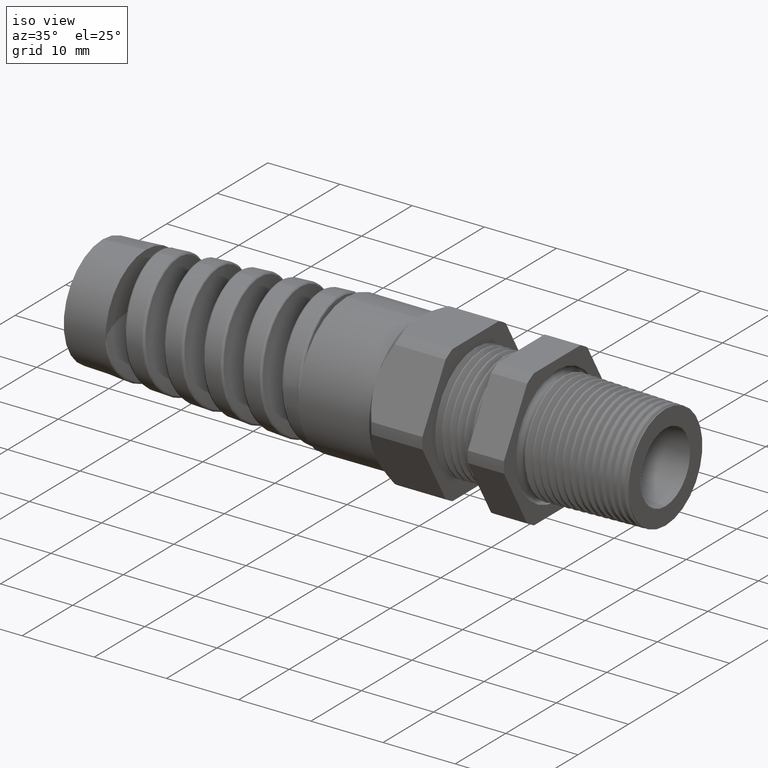
[diagram: clean part render]
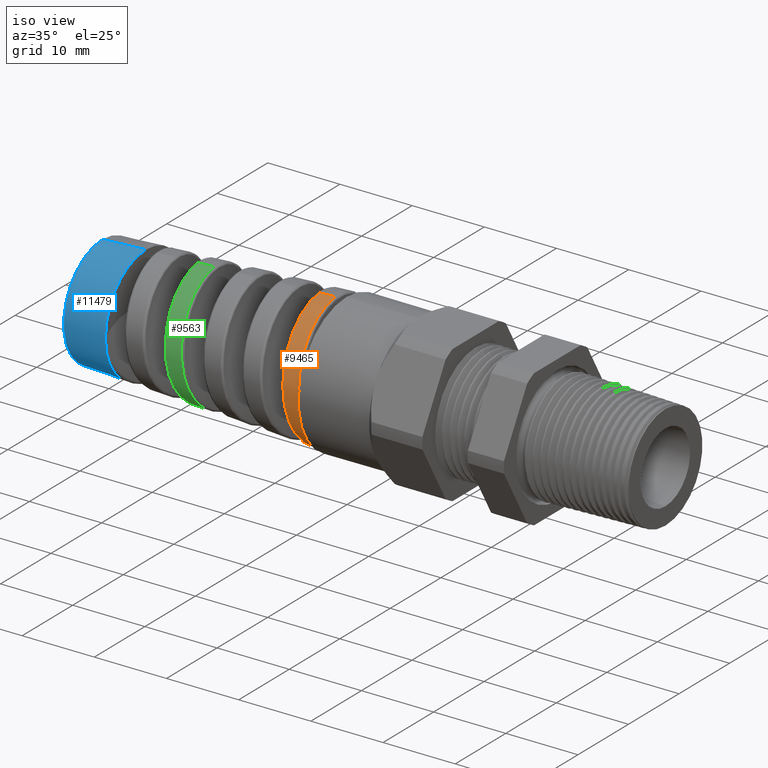
[diagram: same view with three faces highlighted in distinct colors, each labeled with its STEP entity id]
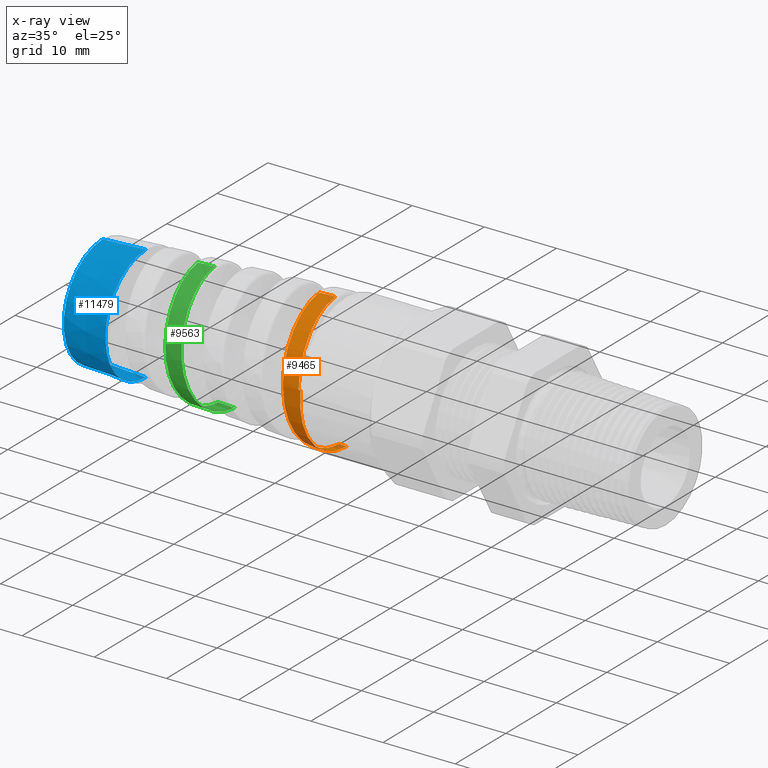
[diagram: x-ray of the same camera — body ghosted, the three highlighted faces saturated]
A machine part, iso view with three faces highlighted in distinct colors.
The next image is the same camera in x-ray (body ghosted, the three faces saturated) — at least one of them is partly hidden behind the body in this view.
Their STEP definitions:

[orange] entity #9465 — the highlighted conical surface has half-angle 2.5 deg.
#6030 = FACE_OUTER_BOUND ( 'NONE', #9493, .T. ) ;
#6035 = CARTESIAN_POINT ( 'NONE',  ( -1.571778055871782200, -0.3113810605606818800, 0.1779882614430946800 ) ) ;
#6036 = CARTESIAN_POINT ( 'NONE',  ( -1.576370169309329300, -0.2853389661659422300, 0.2169704767931280000 ) ) ;
#6037 = CARTESIAN_POINT ( 'NONE',  ( -1.578647077263298600, -0.2705243149593900000, 0.2350391025349286800 ) ) ;
#6038 = CARTESIAN_POINT ( 'NONE',  ( -1.582105804134457600, -0.2455891055882052400, 0.2599811180269279700 ) ) ;
#6039 = CARTESIAN_POINT ( 'NONE',  ( -1.583271790315081700, -0.2367732516595906200, 0.2679675574511629600 ) ) ;
#6040 = CARTESIAN_POINT ( 'NONE',  ( -1.585583947257735800, -0.2185612455307285000, 0.2828904706937561100 ) ) ;
#6041 = CARTESIAN_POINT ( 'NONE',  ( -1.586733660387498200, -0.2091435896758669600, 0.2898569859663470700 ) ) ;
#6042 = CARTESIAN_POINT ( 'NONE',  ( -1.590178333157127500, -0.1799771806739122500, 0.3093032467996154600 ) ) ;
#6043 = CARTESIAN_POINT ( 'NONE',  ( -1.592466302124434700, -0.1593192781369319500, 0.3203460764152060200 ) ) ;
#6044 = CARTESIAN_POINT ( 'NONE',  ( -1.597118572293727800, -0.1155055070360453100, 0.3384046900064670600 ) ) ;
#6045 = CARTESIAN_POINT ( 'NONE',  ( -1.599407778455326200, -0.09307260679280025800, 0.3451234377653054600 ) ) ;
#6046 = CARTESIAN_POINT ( 'NONE',  ( -1.602857018042628500, -0.05867200266389887400, 0.3518710663757834700 ) ) ;
#6047 = CARTESIAN_POINT ( 'NONE',  ( -1.604009139099597600, -0.04707898049493639000, 0.3535611006738981800 ) ) ;
#6048 = CARTESIAN_POINT ( 'NONE',  ( -1.606328307709596200, -0.02363567945895189000, 0.3557963651856082500 ) ) ;
#6049 = CARTESIAN_POINT ( 'NONE',  ( -1.607498346109958100, -0.01175359739355392100, 0.3563350191170096500 ) ) ;
#6050 = CARTESIAN_POINT ( 'NONE',  ( -1.608655034447321600, -4.513586379026960900E-016, 0.3562845170135489600 ) ) ;
#6051 = B_SPLINE_CURVE_WITH_KNOTS ( 'NONE', 3,
 ( #6050, #6049, #6048, #6047, #6046, #6045, #6044, #6043, #6042, #6041, #6040, #6039, #6038, #6037, #6036, #6035, #6115, #6114, #6113, #6112, #6111, #6110, #6109, #6108, #6107, #6106, #6105, #6104, #6103, #6102, #6101, #6100, #6099, #6098, #6097, #6096, #6095, #6094, #6093, #6092, #6091, #6090, #6089, #6088, #6087, #6086, #6085, #6084, #6083 ),
 .UNSPECIFIED., .F., .F.,
 ( 4, 2, 2, 2, 2, 2, 2, 2, 2, 2, 2, 2, 2, 2, 2, 2, 2, 2, 2, 2, 2, 2, 1, 2, 4 ),
 ( 0.2324038332055671800, 0.2333083122058854700, 0.2342127912062037200, 0.2360217492068402700, 0.2378307072074768400, 0.2387351862077951000, 0.2396396652081133900, 0.2414486232087499400, 0.2432575812093865100, 0.2450665392100230500, 0.2459710182103413400, 0.2468754972106596300, 0.2477799762109778900, 0.2486844552112961700, 0.2504934132119327500, 0.2513978922122510100, 0.2523023712125692700, 0.2541113292132058400, 0.2550158082135241000, 0.2559202872138424100, 0.2577292452144789900, 0.2586337242147972400, 0.2595382032151155000, 0.2604426822154338200, 0.2613471612157520800 ),
 .UNSPECIFIED. ) ;
#6052 = CARTESIAN_POINT ( 'NONE',  ( -1.498486759653948200, 6.656304547840253500E-014, -0.3610945677696318900 ) ) ;
#6053 = DIRECTION ( 'NONE',  ( 0.0000000000000000000, 0.0000000000000000000, -1.000000000000000000 ) ) ;
#6054 = DIRECTION ( 'NONE',  ( 1.000000000000000000, 0.0000000000000000000, 0.0000000000000000000 ) ) ;
#6055 = CARTESIAN_POINT ( 'NONE',  ( -1.179999999999999900, 0.0000000000000000000, 0.0000000000000000000 ) ) ;
#6056 = AXIS2_PLACEMENT_3D ( 'NONE', #6055, #6054, #6053 ) ;
#6057 = CONICAL_SURFACE ( 'NONE', #6056, 0.3749999999999998900, 0.04363323129985852100 ) ;
#6072 = CARTESIAN_POINT ( 'NONE',  ( -1.459240900258163400, -0.3591152158779812300, 0.05163297308654676100 ) ) ;
#6073 = DIRECTION ( 'NONE',  ( 0.0000000000000000000, 0.0000000000000000000, 1.000000000000000000 ) ) ;
#6074 = DIRECTION ( 'NONE',  ( 1.000000000000000000, 0.0000000000000000000, 0.0000000000000000000 ) ) ;
#6075 = CARTESIAN_POINT ( 'NONE',  ( -1.459240900258163400, 0.0000000000000000000, 0.0000000000000000000 ) ) ;
#6076 = AXIS2_PLACEMENT_3D ( 'NONE', #6075, #6074, #6073 ) ;
#6077 = CIRCLE ( 'NONE', #6076, 0.3628080789961065600 ) ;
#6078 = CARTESIAN_POINT ( 'NONE',  ( -1.459240900258163400, 0.0000000000000000000, -0.3628080789961066200 ) ) ;
#6079 = DIRECTION ( 'NONE',  ( 0.9990482215818576900, 0.0000000000000000000, -0.04361938736533628500 ) ) ;
#6080 = VECTOR ( 'NONE', #6079, 39.37007874015748100 ) ;
#6081 = CARTESIAN_POINT ( 'NONE',  ( -1.179999999999999900, 0.0000000000000000000, -0.3749999999999998900 ) ) ;
#6082 = LINE ( 'NONE', #6081, #6080 ) ;
#6083 = CARTESIAN_POINT ( 'NONE',  ( -1.498486759653948200, 6.656304547840253500E-014, -0.3610945677696318900 ) ) ;
#6084 = CARTESIAN_POINT ( 'NONE',  ( -1.499631898998454500, -0.01178206201379578900, -0.3610445699060919600 ) ) ;
#6085 = CARTESIAN_POINT ( 'NONE',  ( -1.500785439792753800, -0.02365435918299101500, -0.3604099450175279900 ) ) ;
#6086 = CARTESIAN_POINT ( 'NONE',  ( -1.503067169725916400, -0.04702985666123839900, -0.3580099627199332400 ) ) ;
#6087 = CARTESIAN_POINT ( 'NONE',  ( -1.505336439427186400, -0.07016571652705390300, -0.3544839841052626600 ) ) ;
#6088 = CARTESIAN_POINT ( 'NONE',  ( -1.507604677193304700, -0.09282803269676658000, -0.3487439526908194300 ) ) ;
#6089 = CARTESIAN_POINT ( 'NONE',  ( -1.509883902245693600, -0.1152498025804897400, -0.3418846194874687900 ) ) ;
#6090 = CARTESIAN_POINT ( 'NONE',  ( -1.511033492780479600, -0.1263829590921079200, -0.3378772353510470200 ) ) ;
#6091 = CARTESIAN_POINT ( 'NONE',  ( -1.514485043244910800, -0.1591128031171469300, -0.3242333648118761500 ) ) ;
#6092 = CARTESIAN_POINT ( 'NONE',  ( -1.516754912368249300, -0.1797185487685304400, -0.3131481982078956300 ) ) ;
#6093 = CARTESIAN_POINT ( 'NONE',  ( -1.520168346004291400, -0.2088592970276681400, -0.2936341044845539600 ) ) ;
#6094 = CARTESIAN_POINT ( 'NONE',  ( -1.521307940785192800, -0.2182760913200984300, -0.2866449124988804700 ) ) ;
#6095 = CARTESIAN_POINT ( 'NONE',  ( -1.523603004178094800, -0.2364991461717044200, -0.2716721457837453800 ) ) ;
#6096 = CARTESIAN_POINT ( 'NONE',  ( -1.524757743641114400, -0.2452937573969050400, -0.2636874285872617400 ) ) ;
#6097 = CARTESIAN_POINT ( 'NONE',  ( -1.528188021810725800, -0.2701817238075206500, -0.2387627899863368200 ) ) ;
#6098 = CARTESIAN_POINT ( 'NONE',  ( -1.530455766215751400, -0.2849997346158889000, -0.2207007770459059000 ) ) ;
#6099 = CARTESIAN_POINT ( 'NONE',  ( -1.533891215688994100, -0.3045664059025189300, -0.1914477620712513600 ) ) ;
#6100 = CARTESIAN_POINT ( 'NONE',  ( -1.535047658513723600, -0.3106694284411973300, -0.1812813094721550100 ) ) ;
#6101 = CARTESIAN_POINT ( 'NONE',  ( -1.537351443981479000, -0.3218056929148233600, -0.1604593171696909500 ) ) ;
#6102 = CARTESIAN_POINT ( 'NONE',  ( -1.538494448977943500, -0.3268221495193824300, -0.1498495274353759100 ) ) ;
#6103 = CARTESIAN_POINT ( 'NONE',  ( -1.541915725233559400, -0.3402615802605092900, -0.1174419201998049400 ) ) ;
#6104 = CARTESIAN_POINT ( 'NONE',  ( -1.544186155283582900, -0.3470897972335955100, -0.09507129924111104600 ) ) ;
#6105 = CARTESIAN_POINT ( 'NONE',  ( -1.547646654798905200, -0.3540372468899983200, -0.06033931843906086700 ) ) ;
#6106 = CARTESIAN_POINT ( 'NONE',  ( -1.548804573249648000, -0.3557837377425776500, -0.04861135255121429300 ) ) ;
#6107 = CARTESIAN_POINT ( 'NONE',  ( -1.551099495800363900, -0.3580990781055691800, -0.02526400482740883200 ) ) ;
#6108 = CARTESIAN_POINT ( 'NONE',  ( -1.552242282532573900, -0.3586804297342176500, -0.01358652518019571100 ) ) ;
#6109 = CARTESIAN_POINT ( 'NONE',  ( -1.554527303342179800, -0.3587047811363254200, 0.009775098498407949800 ) ) ;
#6110 = CARTESIAN_POINT ( 'NONE',  ( -1.555669207917893300, -0.3581477985939590700, 0.02145927480015112600 ) ) ;
#6111 = CARTESIAN_POINT ( 'NONE',  ( -1.557964350821097400, -0.3558770415637180800, 0.04483323104279216000 ) ) ;
#6112 = CARTESIAN_POINT ( 'NONE',  ( -1.559124015132138600, -0.3541484932321528600, 0.05658775745930916300 ) ) ;
#6113 = CARTESIAN_POINT ( 'NONE',  ( -1.562582224022575300, -0.3472739702036033400, 0.09128495498295757800 ) ) ;
#6114 = CARTESIAN_POINT ( 'NONE',  ( -1.564859503905990700, -0.3404909697514709200, 0.1136590158892448900 ) ) ;
#6115 = CARTESIAN_POINT ( 'NONE',  ( -1.569446599539288600, -0.3226236744477735700, 0.1569171759857898300 ) ) ;
#6204 = CARTESIAN_POINT ( 'NONE',  ( -1.469688327111959800, -0.3586637142639561000, 0.05156805695474629000 ) ) ;
#6228 = CARTESIAN_POINT ( 'NONE',  ( -1.519614923124346800, -1.119308485251159600E-012, 0.3601720922305889900 ) ) ;
#6229 = CARTESIAN_POINT ( 'NONE',  ( -1.518568649920943600, -0.01078840013953693100, 0.3602177735051566000 ) ) ;
#6230 = CARTESIAN_POINT ( 'NONE',  ( -1.517514705918955300, -0.02166058636251331400, 0.3597730361120169400 ) ) ;
#6231 = CARTESIAN_POINT ( 'NONE',  ( -1.515427544404592400, -0.04310564116399619200, 0.3579293091553617500 ) ) ;
#6232 = CARTESIAN_POINT ( 'NONE',  ( -1.514389115730968800, -0.05373236256308523000, 0.3565327102701143500 ) ) ;
#6233 = CARTESIAN_POINT ( 'NONE',  ( -1.511276340837646400, -0.08532927968947147400, 0.3509456109526993300 ) ) ;
#6234 = CARTESIAN_POINT ( 'NONE',  ( -1.509204248021758500, -0.1060184802451718800, 0.3453690333863843100 ) ) ;
#6235 = CARTESIAN_POINT ( 'NONE',  ( -1.506056323478133500, -0.1364657888950170100, 0.3341329601626512000 ) ) ;
#6236 = CARTESIAN_POINT ( 'NONE',  ( -1.505006980024586400, -0.1464549507996743800, 0.3299243623866641700 ) ) ;
#6237 = CARTESIAN_POINT ( 'NONE',  ( -1.502926866637618300, -0.1658600275568074500, 0.3207103589179975400 ) ) ;
#6238 = CARTESIAN_POINT ( 'NONE',  ( -1.501891827207588100, -0.1753163391953114500, 0.3156904402738150400 ) ) ;
#6239 = CARTESIAN_POINT ( 'NONE',  ( -1.498787995589300000, -0.2029556142799100700, 0.2994096355036891000 ) ) ;
#6240 = CARTESIAN_POINT ( 'NONE',  ( -1.496718534637408800, -0.2204304402932612500, 0.2869242743502555300 ) ) ;
#6241 = CARTESIAN_POINT ( 'NONE',  ( -1.492520488626451800, -0.2532920287401558800, 0.2586323622566725800 ) ) ;
#6242 = CARTESIAN_POINT ( 'NONE',  ( -1.490450814813699000, -0.2682154303764779400, 0.2432295921009169400 ) ) ;
#6243 = CARTESIAN_POINT ( 'NONE',  ( -1.487347242381974700, -0.2884291590153781300, 0.2183202418710650800 ) ) ;
#6244 = CARTESIAN_POINT ( 'NONE',  ( -1.486313298819705000, -0.2948029588307700700, 0.2097143650905488000 ) ) ;
#6245 = CARTESIAN_POINT ( 'NONE',  ( -1.484237088492876600, -0.3068111545445945700, 0.1918889924568067400 ) ) ;
#6246 = CARTESIAN_POINT ( 'NONE',  ( -1.483190034817941400, -0.3124691483265972200, 0.1826251433570424400 ) ) ;
#6247 = CARTESIAN_POINT ( 'NONE',  ( -1.480059000616304600, -0.3281093004586535000, 0.1542163349965437700 ) ) ;
#6248 = CARTESIAN_POINT ( 'NONE',  ( -1.477998843077451800, -0.3367148086255324900, 0.1345991401953731400 ) ) ;
#6249 = CARTESIAN_POINT ( 'NONE',  ( -1.473865049287911700, -0.3503963978746305600, 0.09405772304505817500 ) ) ;
#6250 = CARTESIAN_POINT ( 'NONE',  ( -1.471781295164162500, -0.3554862185970733600, 0.07302592052667417100 ) ) ;
#6251 = CARTESIAN_POINT ( 'NONE',  ( -1.469688327111959800, -0.3586637142639561000, 0.05156805695474629000 ) ) ;
#6256 = B_SPLINE_CURVE_WITH_KNOTS ( 'NONE', 3,
 ( #6251, #6250, #6249, #6248, #6247, #6246, #6245, #6244, #6243, #6242, #6241, #6240, #6239, #6238, #6237, #6236, #6235, #6234, #6233, #6232, #6231, #6230, #6229, #6228 ),
 .UNSPECIFIED., .F., .F.,
 ( 4, 2, 2, 2, 2, 2, 2, 2, 2, 2, 2, 4 ),
 ( 2.602085213965210600E-018, 0.001660285978775004500, 0.003320571957550006300, 0.004150714946937504800, 0.004980857936325003600, 0.006641143915099998800, 0.008301429893874993900, 0.009131572883262491900, 0.009961715872649993400, 0.01162200185142499300, 0.01245214484081249400, 0.01328228783019999200 ),
 .UNSPECIFIED. ) ;
#6570 = CARTESIAN_POINT ( 'NONE',  ( -1.519614923124346800, -1.119308485251159600E-012, 0.3601720922305889900 ) ) ;
#6571 = DIRECTION ( 'NONE',  ( 0.9990482215818576900, 5.341834311772757900E-018, 0.04361938736533628500 ) ) ;
#6572 = VECTOR ( 'NONE', #6571, 39.37007874015748100 ) ;
#6573 = CARTESIAN_POINT ( 'NONE',  ( -1.179999999999999900, 4.592425496802573000E-017, 0.3749999999999998900 ) ) ;
#6574 = LINE ( 'NONE', #6573, #6572 ) ;
#6820 = DIRECTION ( 'NONE',  ( 0.9990482215818576900, -0.04317540489592054000, 0.006207686058474556400 ) ) ;
#6821 = VECTOR ( 'NONE', #6820, 39.37007874015748100 ) ;
#6822 = CARTESIAN_POINT ( 'NONE',  ( -9.768912080661639400, -7.593408308697985000E-020, -5.281331484547503500E-019 ) ) ;
#6823 = LINE ( 'NONE', #6822, #6821 ) ;
#6996 = CARTESIAN_POINT ( 'NONE',  ( -1.608655034447321600, -4.513586379026960900E-016, 0.3562845170135489600 ) ) ;
#9465 = ADVANCED_FACE ( 'NONE', ( #6030 ), #6057, .T. ) ;
#9466 = ORIENTED_EDGE ( 'NONE', *, *, #9550, .F. ) ;
#9467 = ORIENTED_EDGE ( 'NONE', *, *, #9468, .T. ) ;
#9468 = EDGE_CURVE ( 'NONE', #9610, #9469, #6051, .T. ) ;
#9469 = VERTEX_POINT ( 'NONE', #6052 ) ;
#9470 = ORIENTED_EDGE ( 'NONE', *, *, #9471, .T. ) ;
#9471 = EDGE_CURVE ( 'NONE', #9469, #9472, #6082, .T. ) ;
#9472 = VERTEX_POINT ( 'NONE', #6078 ) ;
#9473 = ORIENTED_EDGE ( 'NONE', *, *, #9474, .F. ) ;
#9474 = EDGE_CURVE ( 'NONE', #9475, #9472, #6077, .T. ) ;
#9475 = VERTEX_POINT ( 'NONE', #6072 ) ;
#9476 = ORIENTED_EDGE ( 'NONE', *, *, #9583, .F. ) ;
#9493 = EDGE_LOOP ( 'NONE', ( #9466, #9467, #9470, #9473, #9476, #9503 ) ) ;
#9502 = VERTEX_POINT ( 'NONE', #6204 ) ;
#9503 = ORIENTED_EDGE ( 'NONE', *, *, #9504, .T. ) ;
#9504 = EDGE_CURVE ( 'NONE', #9502, #9551, #6256, .T. ) ;
#9550 = EDGE_CURVE ( 'NONE', #9610, #9551, #6574, .T. ) ;
#9551 = VERTEX_POINT ( 'NONE', #6570 ) ;
#9583 = EDGE_CURVE ( 'NONE', #9502, #9475, #6823, .T. ) ;
#9610 = VERTEX_POINT ( 'NONE', #6996 ) ;

[blue] entity #11479 — the highlighted conical surface has half-angle 3 deg.
#215 = VERTEX_POINT ( 'NONE', #9938 ) ;
#6749 = CARTESIAN_POINT ( 'NONE',  ( -2.553780000000000200, -0.3040296717231083000, -0.08248166521732255800 ) ) ;
#6750 = DIRECTION ( 'NONE',  ( 0.0000000000000000000, 0.0000000000000000000, -1.000000000000000000 ) ) ;
#6751 = DIRECTION ( 'NONE',  ( 1.000000000000000000, 0.0000000000000000000, 0.0000000000000000000 ) ) ;
#6752 = AXIS2_PLACEMENT_3D ( 'NONE', #6759, #6751, #6750 ) ;
#6753 = CIRCLE ( 'NONE', #6752, 0.3150194698511438200 ) ;
#6759 = CARTESIAN_POINT ( 'NONE',  ( -2.553780000000000200, 0.0000000000000000000, 0.0000000000000000000 ) ) ;
#7728 = DIRECTION ( 'NONE',  ( 0.0000000000000000000, 0.0000000000000000000, 1.000000000000000000 ) ) ;
#7729 = DIRECTION ( 'NONE',  ( 1.000000000000000000, 0.0000000000000000000, 0.0000000000000000000 ) ) ;
#7730 = CARTESIAN_POINT ( 'NONE',  ( -2.553780000000000200, 0.0000000000000000000, 0.0000000000000000000 ) ) ;
#7731 = AXIS2_PLACEMENT_3D ( 'NONE', #7730, #7729, #7728 ) ;
#7732 = CONICAL_SURFACE ( 'NONE', #7731, 0.3150194698508069800, 0.05235987755983000100 ) ;
#7736 = FACE_OUTER_BOUND ( 'NONE', #11478, .T. ) ;
#7916 = DIRECTION ( 'NONE',  ( 0.0000000000000000000, 0.0000000000000000000, 1.000000000000000000 ) ) ;
#7917 = DIRECTION ( 'NONE',  ( -1.000000000000000000, 0.0000000000000000000, 0.0000000000000000000 ) ) ;
#7918 = CARTESIAN_POINT ( 'NONE',  ( -2.790000472440945100, 0.0000000000000000000, 0.0000000000000000000 ) ) ;
#7919 = AXIS2_PLACEMENT_3D ( 'NONE', #7918, #7917, #7916 ) ;
#7920 = CIRCLE ( 'NONE', #7919, 0.3026396794689861800 ) ;
#7921 = CARTESIAN_POINT ( 'NONE',  ( -2.790000472440945100, 0.0000000000000000000, 0.3026396794689861800 ) ) ;
#7922 = CARTESIAN_POINT ( 'NONE',  ( -2.790000472440945100, -3.782071500892808600E-017, -0.3026396794689861800 ) ) ;
#7923 = DIRECTION ( 'NONE',  ( 0.9986295347545738300, -6.409306129323724800E-018, -0.05233595624294395300 ) ) ;
#7924 = VECTOR ( 'NONE', #7923, 39.37007874015748900 ) ;
#7925 = CARTESIAN_POINT ( 'NONE',  ( -2.553780000000000200, -3.857875854218868700E-017, -0.3150194698508069800 ) ) ;
#7926 = LINE ( 'NONE', #7925, #7924 ) ;
#7933 = DIRECTION ( 'NONE',  ( 0.0000000000000000000, 0.0000000000000000000, 1.000000000000000000 ) ) ;
#7934 = DIRECTION ( 'NONE',  ( -1.000000000000000000, 0.0000000000000000000, 0.0000000000000000000 ) ) ;
#7935 = CARTESIAN_POINT ( 'NONE',  ( -2.553780000000000200, 0.0000000000000000000, 0.0000000000000000000 ) ) ;
#7936 = AXIS2_PLACEMENT_3D ( 'NONE', #7935, #7934, #7933 ) ;
#7937 = CIRCLE ( 'NONE', #7936, 0.3150194698508069800 ) ;
#7938 = DIRECTION ( 'NONE',  ( 0.9986295347545738300, 0.0000000000000000000, 0.05233595624294395300 ) ) ;
#7939 = VECTOR ( 'NONE', #7938, 39.37007874015748900 ) ;
#7940 = CARTESIAN_POINT ( 'NONE',  ( -2.553780000000000200, 0.0000000000000000000, 0.3150194698508069800 ) ) ;
#7941 = LINE ( 'NONE', #7940, #7939 ) ;
#7942 = CARTESIAN_POINT ( 'NONE',  ( -2.553780000000000200, 0.0000000000000000000, 0.3150194698508069800 ) ) ;
#9573 = EDGE_CURVE ( 'NONE', #9574, #215, #6753, .T. ) ;
#9574 = VERTEX_POINT ( 'NONE', #6749 ) ;
#9938 = CARTESIAN_POINT ( 'NONE',  ( -2.553780000000000200, -3.857875854218868700E-017, -0.3150194698508069800 ) ) ;
#11478 = EDGE_LOOP ( 'NONE', ( #11540, #11541, #11533, #11534, #11529 ) ) ;
#11479 = ADVANCED_FACE ( 'NONE', ( #7736 ), #7732, .T. ) ;
#11529 = ORIENTED_EDGE ( 'NONE', *, *, #11531, .F. ) ;
#11530 = VERTEX_POINT ( 'NONE', #7942 ) ;
#11531 = EDGE_CURVE ( 'NONE', #11539, #11530, #7941, .T. ) ;
#11532 = EDGE_CURVE ( 'NONE', #9574, #11530, #7937, .T. ) ;
#11533 = ORIENTED_EDGE ( 'NONE', *, *, #9573, .F. ) ;
#11534 = ORIENTED_EDGE ( 'NONE', *, *, #11532, .T. ) ;
#11536 = EDGE_CURVE ( 'NONE', #11537, #215, #7926, .T. ) ;
#11537 = VERTEX_POINT ( 'NONE', #7922 ) ;
#11539 = VERTEX_POINT ( 'NONE', #7921 ) ;
#11540 = ORIENTED_EDGE ( 'NONE', *, *, #11542, .F. ) ;
#11541 = ORIENTED_EDGE ( 'NONE', *, *, #11536, .T. ) ;
#11542 = EDGE_CURVE ( 'NONE', #11537, #11539, #7920, .T. ) ;

[green] entity #9563 — the highlighted conical surface has half-angle 2.5 deg.
#180 = VERTEX_POINT ( 'NONE', #9855 ) ;
#187 = VERTEX_POINT ( 'NONE', #9853 ) ;
#203 = EDGE_CURVE ( 'NONE', #180, #187, #9957, .T. ) ;
#224 = VERTEX_POINT ( 'NONE', #10028 ) ;
#232 = VERTEX_POINT ( 'NONE', #10049 ) ;
#6583 = FACE_OUTER_BOUND ( 'NONE', #9564, .T. ) ;
#6611 = DIRECTION ( 'NONE',  ( 0.0000000000000000000, 0.0000000000000000000, -1.000000000000000000 ) ) ;
#6612 = DIRECTION ( 'NONE',  ( 1.000000000000000000, 0.0000000000000000000, 0.0000000000000000000 ) ) ;
#6613 = CARTESIAN_POINT ( 'NONE',  ( -1.179999999999999900, 0.0000000000000000000, 0.0000000000000000000 ) ) ;
#6614 = AXIS2_PLACEMENT_3D ( 'NONE', #6613, #6612, #6611 ) ;
#6615 = CONICAL_SURFACE ( 'NONE', #6614, 0.3749999999999998900, 0.04363323129985852100 ) ;
#6657 = CARTESIAN_POINT ( 'NONE',  ( -2.170894545700542200, -0.1060603706746664800, -0.3145104035719053500 ) ) ;
#6658 = CARTESIAN_POINT ( 'NONE',  ( -2.173163666118128800, -0.1262934254294318900, -0.3072119917686554900 ) ) ;
#6659 = CARTESIAN_POINT ( 'NONE',  ( -2.175436304532456500, -0.1457345687326740400, -0.2979861204545749000 ) ) ;
#6660 = CARTESIAN_POINT ( 'NONE',  ( -2.177721811647240500, -0.1647723297263854200, -0.2877815406377447500 ) ) ;
#6661 = CARTESIAN_POINT ( 'NONE',  ( -2.178877412230768100, -0.1741389241583808400, -0.2821548007699564200 ) ) ;
#6662 = CARTESIAN_POINT ( 'NONE',  ( -2.182324299583688900, -0.2011718776730506700, -0.2640431418527938700 ) ) ;
#6663 = CARTESIAN_POINT ( 'NONE',  ( -2.184591850975859700, -0.2177781302554932200, -0.2503770621246646000 ) ) ;
#6664 = CARTESIAN_POINT ( 'NONE',  ( -2.189148604885988300, -0.2482161615642515800, -0.2199386334852048700 ) ) ;
#6665 = CARTESIAN_POINT ( 'NONE',  ( -2.191462971982812900, -0.2621547347662137000, -0.2029634600077967800 ) ) ;
#6666 = CARTESIAN_POINT ( 'NONE',  ( -2.196036231682297200, -0.2861199088718586200, -0.1671005377800848800 ) ) ;
#6667 = CARTESIAN_POINT ( 'NONE',  ( -2.198307744066541500, -0.2962661904987685100, -0.1481557404858936400 ) ) ;
#6668 = CARTESIAN_POINT ( 'NONE',  ( -2.201751120174133500, -0.3087067066922700700, -0.1182122284537268600 ) ) ;
#6669 = CARTESIAN_POINT ( 'NONE',  ( -2.202910612646730400, -0.3124018181921564600, -0.1079175797289022400 ) ) ;
#6670 = CARTESIAN_POINT ( 'NONE',  ( -2.205210188892868100, -0.3187063422873279700, -0.08718396851785680000 ) ) ;
#6671 = CARTESIAN_POINT ( 'NONE',  ( -2.206352519017718000, -0.3213296339385827100, -0.07672846790529810900 ) ) ;
#6672 = CARTESIAN_POINT ( 'NONE',  ( -2.209775374002922500, -0.3276486558417135400, -0.04510384499918569000 ) ) ;
#6673 = CARTESIAN_POINT ( 'NONE',  ( -2.212051777348005300, -0.3298084604192683100, -0.02367908331675341900 ) ) ;
#6674 = CARTESIAN_POINT ( 'NONE',  ( -2.216684854818229900, -0.3298575578750797000, 0.01987130115053735100 ) ) ;
#6675 = CARTESIAN_POINT ( 'NONE',  ( -2.218973605474873900, -0.3277380270187245600, 0.04135899528272753100 ) ) ;
#6676 = CARTESIAN_POINT ( 'NONE',  ( -2.222403128331529800, -0.3214820255662196900, 0.07298585717378140700 ) ) ;
#6677 = CARTESIAN_POINT ( 'NONE',  ( -2.223547165543339400, -0.3188801404583830300, 0.08343714435275573200 ) ) ;
#6678 = CARTESIAN_POINT ( 'NONE',  ( -2.225849144140276800, -0.3126216973847637500, 0.1041526003303926400 ) ) ;
#6679 = CARTESIAN_POINT ( 'NONE',  ( -2.227012144443711400, -0.3089430229509928500, 0.1144591590716564500 ) ) ;
#6680 = CARTESIAN_POINT ( 'NONE',  ( -2.230468822373396600, -0.2965303548537427900, 0.1444590505176188100 ) ) ;
#6681 = CARTESIAN_POINT ( 'NONE',  ( -2.232749726112863700, -0.2863987067390478800, 0.1634159556620261900 ) ) ;
#6682 = CARTESIAN_POINT ( 'NONE',  ( -2.237348438689666300, -0.2624723453320158600, 0.1992615658953241200 ) ) ;
#6683 = CARTESIAN_POINT ( 'NONE',  ( -2.239680622036243700, -0.2485302584388902900, 0.2162453381287213800 ) ) ;
#6684 = CARTESIAN_POINT ( 'NONE',  ( -2.244272690150029600, -0.2180541008018405900, 0.2466778603793996500 ) ) ;
#6685 = CARTESIAN_POINT ( 'NONE',  ( -2.246554900309354300, -0.2014313386639980900, 0.2603140747622508200 ) ) ;
#6686 = CARTESIAN_POINT ( 'NONE',  ( -2.250027744807871600, -0.1743841786010458300, 0.2783457586155093100 ) ) ;
#6687 = CARTESIAN_POINT ( 'NONE',  ( -2.251195641958689400, -0.1649935860308949200, 0.2839528617396531700 ) ) ;
#6688 = CARTESIAN_POINT ( 'NONE',  ( -2.253507297979378900, -0.1459103109628500900, 0.2941021020653666300 ) ) ;
#6689 = CARTESIAN_POINT ( 'NONE',  ( -2.254657407257320200, -0.1361694094962954100, 0.2986795237500410900 ) ) ;
#6690 = CARTESIAN_POINT ( 'NONE',  ( -2.256955106015407600, -0.1162966640291082800, 0.3068563773669184500 ) ) ;
#6691 = CARTESIAN_POINT ( 'NONE',  ( -2.258102730388366700, -0.1061648153725113800, 0.3104557875379529400 ) ) ;
#6692 = CARTESIAN_POINT ( 'NONE',  ( -2.260408075696960700, -0.08550676161150994000, 0.3166644177187194500 ) ) ;
#6693 = CARTESIAN_POINT ( 'NONE',  ( -2.261570862821269800, -0.07493318137927036700, 0.3192824253081474900 ) ) ;
#6694 = CARTESIAN_POINT ( 'NONE',  ( -2.265057047175392600, -0.04293471037541230600, 0.3255263259723447100 ) ) ;
#6695 = CARTESIAN_POINT ( 'NONE',  ( -2.267349572006503300, -0.02150988329945805300, 0.3275252924150793300 ) ) ;
#6696 = CARTESIAN_POINT ( 'NONE',  ( -2.269655256799251400, 7.706197884670312700E-013, 0.3274246240429274400 ) ) ;
#6697 = B_SPLINE_CURVE_WITH_KNOTS ( 'NONE', 3,
 ( #6696, #6695, #6694, #6693, #6692, #6691, #6690, #6689, #6688, #6687, #6686, #6685, #6684, #6683, #6682, #6681, #6680, #6679, #6678, #6677, #6676, #6675, #6674, #6673, #6672, #6671, #6670, #6669, #6668, #6667, #6666, #6665, #6664, #6663, #6662, #6661, #6660, #6659, #6658, #6657, #6739, #6738, #6737, #6736, #6735 ),
 .UNSPECIFIED., .F., .F.,
 ( 4, 2, 2, 2, 2, 2, 2, 2, 2, 2, 2, 2, 2, 2, 2, 2, 2, 2, 2, 1, 2, 2, 4 ),
 ( 0.06686078864022901300, 0.06852483565947477300, 0.06935685916909764500, 0.07018888267872051800, 0.07102090618834339100, 0.07185292969796627800, 0.07351697671721202400, 0.07518102373645776900, 0.07684507075570351500, 0.07767709426532638800, 0.07850911777494926100, 0.08017316479419500700, 0.08183721181344075200, 0.08266923532306362500, 0.08350125883268649800, 0.08516530585193224400, 0.08682935287117800300, 0.08849339989042374900, 0.08932542340004662200, 0.09015744690966950900, 0.09098947041929238100, 0.09182149392891525400, 0.09348554094816100000 ),
 .UNSPECIFIED. ) ;
#6698 = CARTESIAN_POINT ( 'NONE',  ( -2.141833053352830300, -0.2898358616497792600, 0.1654168920858258000 ) ) ;
#6699 = CARTESIAN_POINT ( 'NONE',  ( -2.139559138851342200, -0.3000949448308239400, 0.1462284849558326800 ) ) ;
#6700 = CARTESIAN_POINT ( 'NONE',  ( -2.136104212774104100, -0.3126706701623340200, 0.1158299756681233500 ) ) ;
#6701 = CARTESIAN_POINT ( 'NONE',  ( -2.134943225512874900, -0.3163899307625011600, 0.1054045567895785400 ) ) ;
#6702 = CARTESIAN_POINT ( 'NONE',  ( -2.132648491768576600, -0.3227157108411434200, 0.08446346527146204900 ) ) ;
#6703 = CARTESIAN_POINT ( 'NONE',  ( -2.131508426113751100, -0.3253476491853571900, 0.07389329215010759200 ) ) ;
#6704 = CARTESIAN_POINT ( 'NONE',  ( -2.129230318205805000, -0.3295682903314433000, 0.05255851374006048600 ) ) ;
#6705 = CARTESIAN_POINT ( 'NONE',  ( -2.128092360600186700, -0.3311569742089378000, 0.04179389586242916000 ) ) ;
#6706 = CARTESIAN_POINT ( 'NONE',  ( -2.125806738865998900, -0.3332798871578968000, 0.02006939557902949800 ) ) ;
#6707 = CARTESIAN_POINT ( 'NONE',  ( -2.124654361712061200, -0.3338137146303403200, 0.009064363593445626600 ) ) ;
#6708 = CARTESIAN_POINT ( 'NONE',  ( -2.121197357060928800, -0.3337731482831930400, -0.02393937723800659100 ) ) ;
#6709 = CARTESIAN_POINT ( 'NONE',  ( -2.118925118559408000, -0.3315920869041024100, -0.04560934532308043300 ) ) ;
#6710 = CARTESIAN_POINT ( 'NONE',  ( -2.115506712511138000, -0.3251955808759321400, -0.07762581067975883600 ) ) ;
#6711 = CARTESIAN_POINT ( 'NONE',  ( -2.114366192358787100, -0.3225388033506491100, -0.08821602655930067800 ) ) ;
#6712 = CARTESIAN_POINT ( 'NONE',  ( -2.112070655977577700, -0.3161484165228987100, -0.1092269531908155500 ) ) ;
#6713 = CARTESIAN_POINT ( 'NONE',  ( -2.110917274214499300, -0.3124124060085702900, -0.1196300054458477200 ) ) ;
#6714 = CARTESIAN_POINT ( 'NONE',  ( -2.107492736712766900, -0.2998339217278100400, -0.1499022249755846100 ) ) ;
#6715 = CARTESIAN_POINT ( 'NONE',  ( -2.105231403813514900, -0.2895690419655885800, -0.1690754382051825300 ) ) ;
#6716 = CARTESIAN_POINT ( 'NONE',  ( -2.101806080582748300, -0.2713621131680028500, -0.1963199687824689600 ) ) ;
#6717 = CARTESIAN_POINT ( 'NONE',  ( -2.100652854151490600, -0.2647841858222959000, -0.2051910856695240700 ) ) ;
#6718 = CARTESIAN_POINT ( 'NONE',  ( -2.098356765070218600, -0.2508391473853392500, -0.2221731455057819000 ) ) ;
#6719 = CARTESIAN_POINT ( 'NONE',  ( -2.097217823817778500, -0.2434990319776212700, -0.2302617908286562500 ) ) ;
#6720 = CARTESIAN_POINT ( 'NONE',  ( -2.093811425456612700, -0.2204078527942798500, -0.2533530472699989100 ) ) ;
#6721 = CARTESIAN_POINT ( 'NONE',  ( -2.091553763405673600, -0.2035960297813669800, -0.2671919466388113500 ) ) ;
#6722 = CARTESIAN_POINT ( 'NONE',  ( -2.088116244337223600, -0.1761959492590242600, -0.2855450592875418100 ) ) ;
#6723 = CARTESIAN_POINT ( 'NONE',  ( -2.086967208244288100, -0.1667360073865665500, -0.2912252291879578500 ) ) ;
#6724 = CARTESIAN_POINT ( 'NONE',  ( -2.084689862425794800, -0.1474875525740828300, -0.3015413081920322300 ) ) ;
#6725 = CARTESIAN_POINT ( 'NONE',  ( -2.083556001908337700, -0.1376550073011353900, -0.3062075446135403300 ) ) ;
#6726 = CARTESIAN_POINT ( 'NONE',  ( -2.081288387476307300, -0.1175795519900007500, -0.3145686939262200000 ) ) ;
#6727 = CARTESIAN_POINT ( 'NONE',  ( -2.080154822462234200, -0.1073366230914542500, -0.3182636130011511400 ) ) ;
#6728 = CARTESIAN_POINT ( 'NONE',  ( -2.077878986819796200, -0.08643496993060698100, -0.3246669020587796300 ) ) ;
#6729 = CARTESIAN_POINT ( 'NONE',  ( -2.076730000424165600, -0.07571592097067891800, -0.3273857352476087200 ) ) ;
#6730 = CARTESIAN_POINT ( 'NONE',  ( -2.073305328018920000, -0.04343562206093583300, -0.3339005898747950400 ) ) ;
#6731 = CARTESIAN_POINT ( 'NONE',  ( -2.071053471832011300, -0.02178104877567348100, -0.3360957652379732400 ) ) ;
#6732 = CARTESIAN_POINT ( 'NONE',  ( -2.068787640064678100, 9.703833087165205500E-013, -0.3361946935893445600 ) ) ;
#6733 = B_SPLINE_CURVE_WITH_KNOTS ( 'NONE', 3,
 ( #6732, #6731, #6730, #6729, #6728, #6727, #6726, #6725, #6724, #6723, #6722, #6721, #6720, #6719, #6718, #6717, #6716, #6715, #6714, #6713, #6712, #6711, #6710, #6709, #6708, #6707, #6706, #6705, #6704, #6703, #6702, #6701, #6700, #6699, #6698, #6772, #6771, #6770, #6769, #6768, #6767, #6766, #6765, #6764, #6763, #6762, #6761, #6760 ),
 .UNSPECIFIED., .F., .F.,
 ( 4, 2, 2, 2, 2, 2, 2, 2, 2, 2, 2, 2, 2, 2, 2, 2, 2, 2, 2, 2, 2, 2, 2, 4 ),
 ( 0.1541551796259835200, 0.1558436678318604100, 0.1566879119347988300, 0.1575321560377372900, 0.1583764001406757200, 0.1592206442436141500, 0.1609091324494910400, 0.1617533765524295000, 0.1625976206553679200, 0.1642861088612448100, 0.1651303529641832700, 0.1659745970671217000, 0.1676630852729985900, 0.1685073293759370100, 0.1693515734788754700, 0.1701958175818139000, 0.1710400616847523600, 0.1727285498906292500, 0.1744170380965061300, 0.1761055263023830200, 0.1769497704053214500, 0.1777940145082599100, 0.1794825027141367700, 0.1811709909200136500 ),
 .UNSPECIFIED. ) ;
#6735 = CARTESIAN_POINT ( 'NONE',  ( -2.159486677192966400, -6.190649241902019200E-014, -0.3322346881074293400 ) ) ;
#6736 = CARTESIAN_POINT ( 'NONE',  ( -2.161758185019163800, -0.02151105015650202000, -0.3321355119339096100 ) ) ;
#6737 = CARTESIAN_POINT ( 'NONE',  ( -2.164023104291532600, -0.04291753007132403900, -0.3299672110687326100 ) ) ;
#6738 = CARTESIAN_POINT ( 'NONE',  ( -2.167465555205398500, -0.07485971389521603500, -0.3235159089531999300 ) ) ;
#6739 = CARTESIAN_POINT ( 'NONE',  ( -2.168615546613128900, -0.08542768286848954900, -0.3208328767820312600 ) ) ;
#6760 = CARTESIAN_POINT ( 'NONE',  ( -2.178621865879716500, -6.435187334179715600E-015, 0.3313992277266334900 ) ) ;
#6761 = CARTESIAN_POINT ( 'NONE',  ( -2.176326761380550600, -0.02176040122209041100, 0.3314994341531403200 ) ) ;
#6762 = CARTESIAN_POINT ( 'NONE',  ( -2.174038289615167300, -0.04345459741077054700, 0.3294770359067075200 ) ) ;
#6763 = CARTESIAN_POINT ( 'NONE',  ( -2.169390402336380600, -0.08669677119678845200, 0.3210322630834571100 ) ) ;
#6764 = CARTESIAN_POINT ( 'NONE',  ( -2.167099224591007900, -0.1076331366668202800, 0.3147179009294611700 ) ) ;
#6765 = CARTESIAN_POINT ( 'NONE',  ( -2.163666392225156900, -0.1378051842977162700, 0.3023022800817130600 ) ) ;
#6766 = CARTESIAN_POINT ( 'NONE',  ( -2.162521248579774500, -0.1476694746478853200, 0.2976667292217687300 ) ) ;
#6767 = CARTESIAN_POINT ( 'NONE',  ( -2.160217187109438000, -0.1670030586836363800, 0.2873822563022673800 ) ) ;
#6768 = CARTESIAN_POINT ( 'NONE',  ( -2.159053126902495700, -0.1765107627376664400, 0.2817026280226525600 ) ) ;
#6769 = CARTESIAN_POINT ( 'NONE',  ( -2.155594563969385600, -0.2038480686064964900, 0.2634741208827778800 ) ) ;
#6770 = CARTESIAN_POINT ( 'NONE',  ( -2.153314363619922100, -0.2206680314181700700, 0.2496802761079482100 ) ) ;
#6771 = CARTESIAN_POINT ( 'NONE',  ( -2.148730249836482600, -0.2515312146476301700, 0.2188602470335053200 ) ) ;
#6772 = CARTESIAN_POINT ( 'NONE',  ( -2.146407924733008800, -0.2656385575751141800, 0.2016698796558753200 ) ) ;
#6896 = DIRECTION ( 'NONE',  ( 0.9990482215818576900, 0.0000000000000000000, -0.04361938736533628500 ) ) ;
#6897 = VECTOR ( 'NONE', #6896, 39.37007874015748100 ) ;
#6898 = CARTESIAN_POINT ( 'NONE',  ( -1.179999999999999900, 0.0000000000000000000, -0.3749999999999998900 ) ) ;
#6899 = LINE ( 'NONE', #6898, #6897 ) ;
#9563 = ADVANCED_FACE ( 'NONE', ( #6583 ), #6615, .T. ) ;
#9564 = EDGE_LOOP ( 'NONE', ( #9565, #9566, #9568, #9569 ) ) ;
#9565 = ORIENTED_EDGE ( 'NONE', *, *, #203, .F. ) ;
#9566 = ORIENTED_EDGE ( 'NONE', *, *, #9567, .T. ) ;
#9567 = EDGE_CURVE ( 'NONE', #180, #224, #6697, .T. ) ;
#9568 = ORIENTED_EDGE ( 'NONE', *, *, #9596, .T. ) ;
#9569 = ORIENTED_EDGE ( 'NONE', *, *, #9570, .T. ) ;
#9570 = EDGE_CURVE ( 'NONE', #232, #187, #6733, .T. ) ;
#9596 = EDGE_CURVE ( 'NONE', #224, #232, #6899, .T. ) ;
#9853 = CARTESIAN_POINT ( 'NONE',  ( -2.178621865879716500, -6.435187334179715600E-015, 0.3313992277266334900 ) ) ;
#9855 = CARTESIAN_POINT ( 'NONE',  ( -2.269655256799251400, 7.706197884670312700E-013, 0.3274246240429274400 ) ) ;
#9954 = DIRECTION ( 'NONE',  ( 0.9990482215818576900, 5.341834311772757900E-018, 0.04361938736533628500 ) ) ;
#9955 = VECTOR ( 'NONE', #9954, 39.37007874015748100 ) ;
#9956 = CARTESIAN_POINT ( 'NONE',  ( -1.179999999999999900, 4.592425496802573000E-017, 0.3749999999999998900 ) ) ;
#9957 = LINE ( 'NONE', #9956, #9955 ) ;
#10028 = CARTESIAN_POINT ( 'NONE',  ( -2.159486677192966400, -6.190649241902019200E-014, -0.3322346881074293400 ) ) ;
#10049 = CARTESIAN_POINT ( 'NONE',  ( -2.068787640064678100, 9.703833087165205500E-013, -0.3361946935893445600 ) ) ;